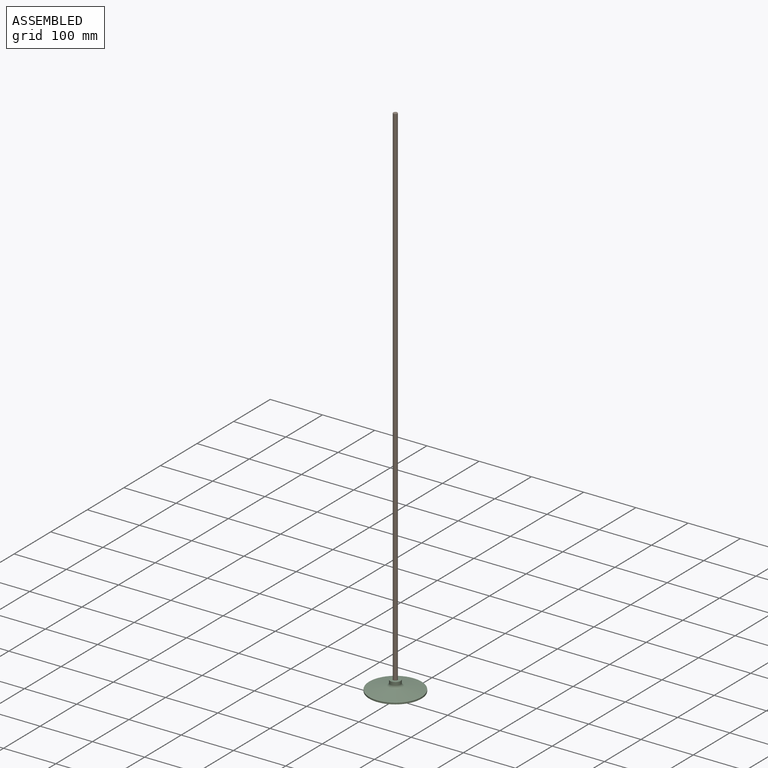
[diagram: assembled view]
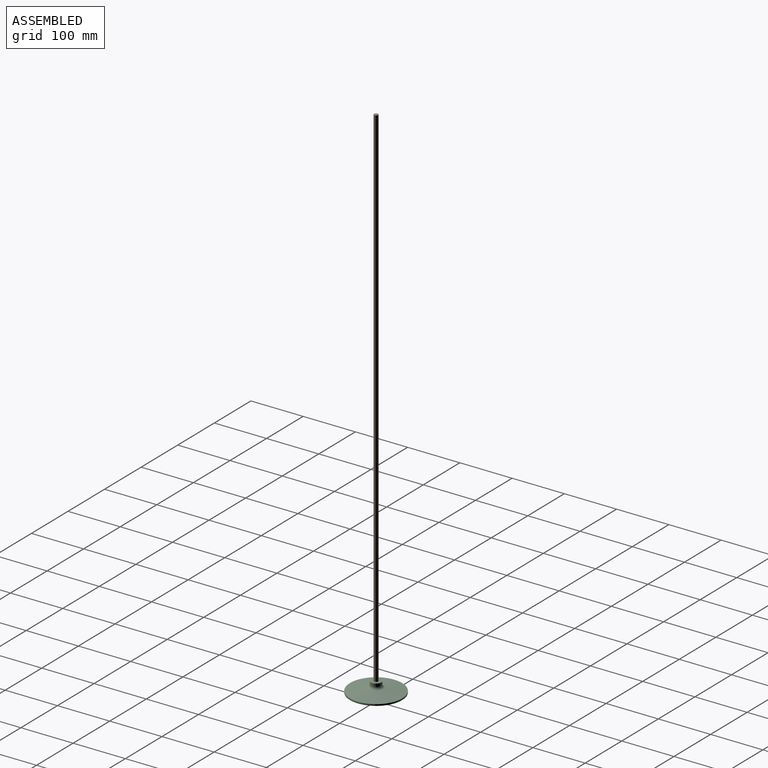
[diagram: assembled view, second angle]
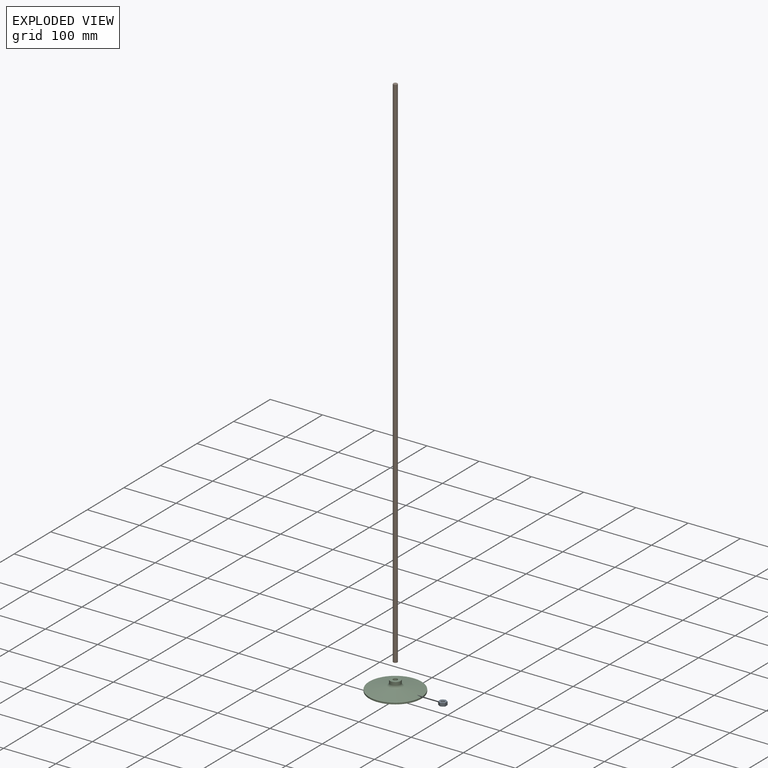
[diagram: exploded view]
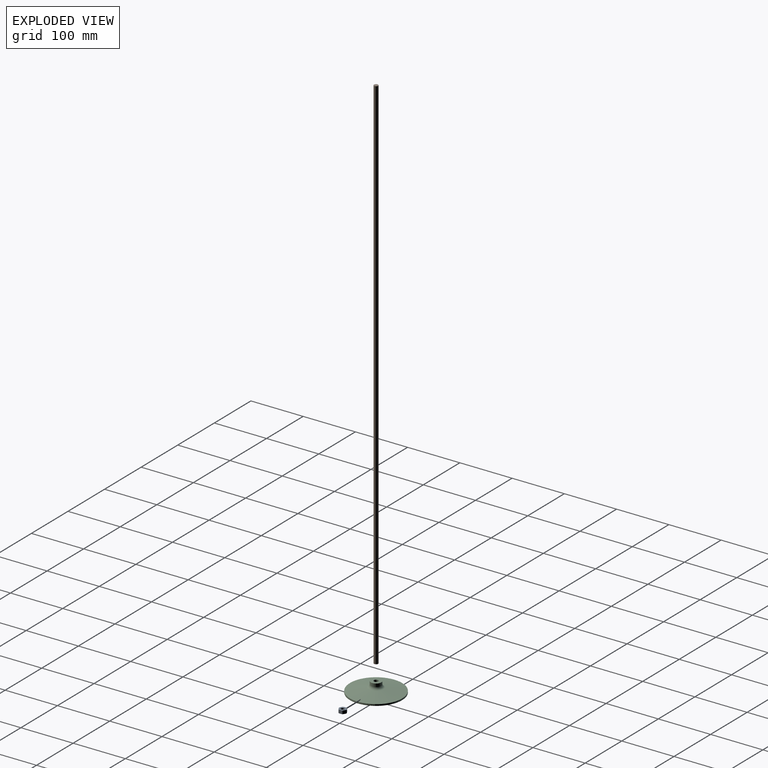
[diagram: exploded view, second angle]
ASSEMBLY  parts=3 mates=3
PART A: 13 faces, bbox 7.4x15.6x15.6 mm
  f0: plane 11.6x11.6mm, normal (1,0,0), area 55.4mm2, adj f1,f6
  f1: cone r=7.8mm half-angle=75deg, axis (-1,0,0), area 43.5mm2, adj f0,f7,f8,f9,f10,f11,f12
  f2: cone r=5.8mm half-angle=75deg, axis (1,0,0), area 43.5mm2, adj f3,f7,f8,f9,f10,f11,f12
  f3: plane 11.6x11.6mm, normal (-1,0,0), area 55.4mm2, adj f2,f4
  f4: cone r=4mm half-angle=45deg, axis (-1,0,0), area 22mm2, adj f3,f5
  f5: cylinder r=3.32mm len=6.65mm, axis (1,0,0), area 113.7mm2, adj f4,f6
  f6: cone r=3.32mm half-angle=45deg, axis (1,0,0), area 22mm2, adj f0,f5
  f7: plane 6.5x6.43mm, normal (0,0.87,0.5), area 46.8mm2, adj f1,f2,f8,f12
  f8: plane 6.5x6.43mm, normal (0,0.87,-0.5), area 46.8mm2, adj f1,f2,f7,f9
  f9: plane 8.07x6.99mm, normal (0,0,-1), area 46.8mm2, adj f1,f2,f8,f10
  f10: plane 6.5x6.43mm, normal (0,-0.87,-0.5), area 46.8mm2, adj f1,f2,f9,f11
  f11: plane 6.5x6.43mm, normal (0,-0.87,0.5), area 46.8mm2, adj f1,f2,f10,f12
  f12: plane 8.07x6.99mm, normal (0,0,1), area 46.8mm2, adj f1,f2,f7,f11
PART B: 3 faces, bbox 1000x8x8 mm
  f0: plane 8x8mm, normal (-1,0,0), area 50.3mm2, adj f1
  f1: cylinder r=4mm len=1000mm, axis (1,0,0), area 25132.7mm2, adj f0,f2
  f2: plane 8x8mm, normal (1,0,0), area 50.3mm2, adj f1
PART C: 14 faces, bbox 100x100x20 mm
  f0: plane 100x100mm, normal (0,0,-1), area 7705.4mm2, adj f1,f6,f7,f8,f9,f10,f11
  f1: cylinder r=50mm len=100mm, axis (0,0,-1), area 925.8mm2, adj f0,f2
  f2: cone r=50mm half-angle=80deg, axis (0,0,-1), area 7338.1mm2, adj f1,f13
  f3: cylinder r=10mm len=20mm, axis (0,0,-1), area 364.7mm2, adj f4,f13
  f4: plane 20x20mm, normal (0,0,1), area 257.4mm2, adj f3,f5
  f5: cylinder r=4.25mm len=13.1mm, axis (0,0,-1), area 349.8mm2, adj f4,f12
  f6: plane 6.9x6.55mm, normal (-0.5,0.87,0), area 52.2mm2, adj f0,f7,f11,f12
  f7: plane 7.56x6.9mm, normal (-1,0,0), area 52.2mm2, adj f0,f6,f8,f12
  f8: plane 6.9x6.55mm, normal (-0.5,-0.87,0), area 52.2mm2, adj f0,f7,f9,f12
  f9: plane 6.9x6.55mm, normal (0.5,-0.87,0), area 52.2mm2, adj f0,f8,f10,f12
  f10: plane 7.56x6.9mm, normal (1,0,0), area 52.2mm2, adj f0,f9,f11,f12
  f11: plane 6.9x6.55mm, normal (0.5,0.87,0), area 52.2mm2, adj f0,f6,f10,f12
  f12: plane 15.13x13.1mm, normal (0,0,-1), area 91.9mm2, adj f5,f6,f7,f8,f9,f10,f11
  f13: torus R=15mm, axis (0,0,-1), area 503.3mm2, adj f2,f3
PLACE A rot(axis=(0.71,0,-0.71),180deg) t=(0.03,-0.18,-3.4)mm
PLACE B rot(axis=(0.01,1,-0.01),90deg) t=(-0.02,-0.18,989.75)mm
PLACE C t=(-0.02,-0.18,-10.25)mm fixed
MATE cylindrical B.f1 <-> C.f1  axis (0,0,-1) through (-0.02,-0.18,489.75)mm
MATE fastened A.f9 <-> C.f7  axis (1,0,0) through (6.53,-0.18,-6.8)mm
MATE planar B.f1 <-> C.f0  axis (0,0,-1) through (-0.02,-0.18,-10.25)mm
